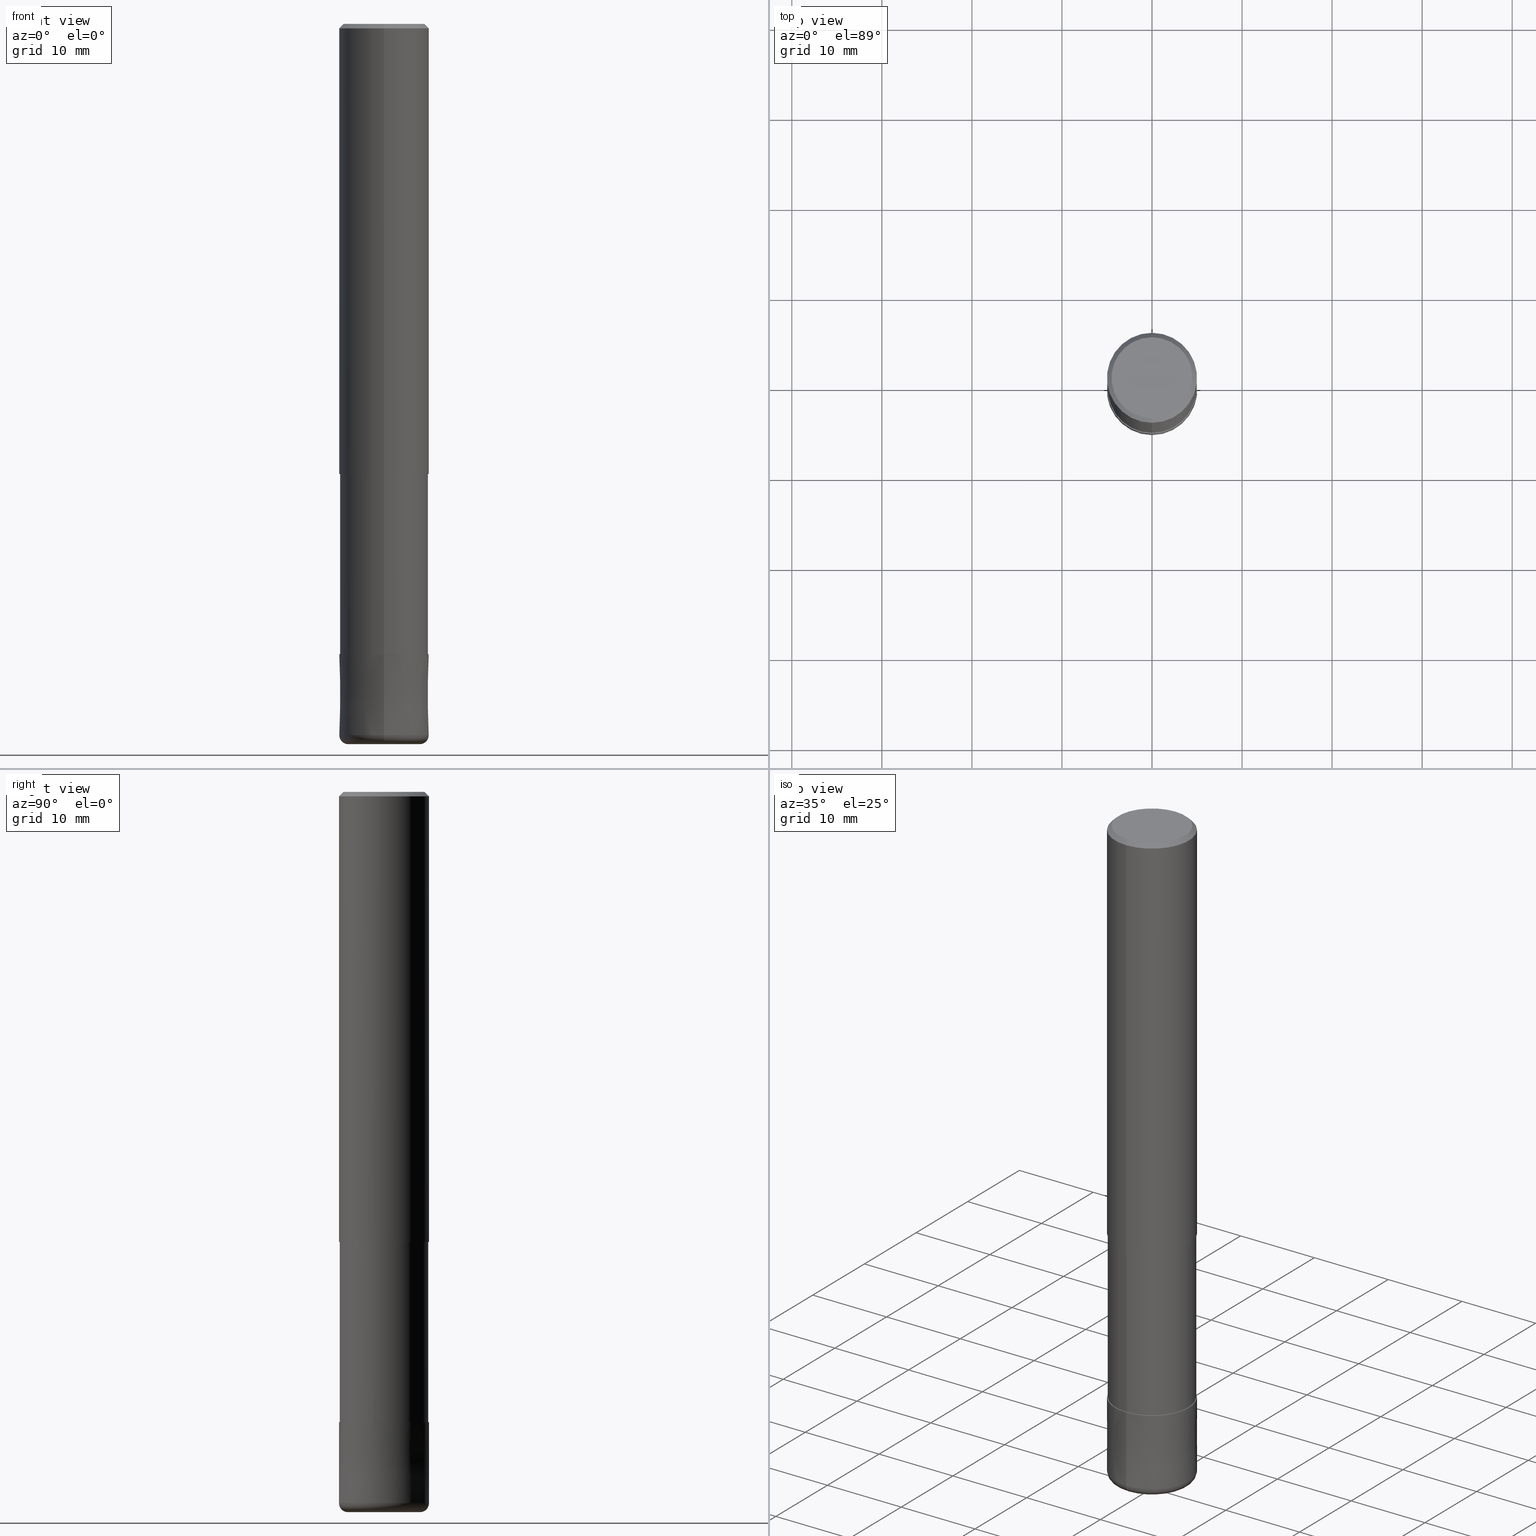
[diagram: canonical four-view strip — front | top / right | iso, engineering-drawing reading convention]
A machine part, canonical four-view strip (front | top / right | iso — engineering-drawing reading convention). The complete STEP part file that produces these views, byte-faithful:
ISO-10303-21;
HEADER;
FILE_DESCRIPTION(('no description'),'unknown implementation level');
FILE_NAME('CRRS4100-10-30-Huellk.stp','  ',('CIMSOURCE GmbH'),('CADClick - KiM GmbH - www.kimweb.de'),'unknown preprocess','ACIS','unknown authorization');
FILE_SCHEMA(('automotive_design'));
ENDSEC;
DATA;
#1=MECHANICAL_DESIGN_GEOMETRIC_PRESENTATION_REPRESENTATION(' ',(#14,#15,#16,#17,#18,#19,#20,#21,#22,#23,#24,#25,#26,#27,#28,#29,#30,#31,#32,#33,#34,#35,#36,#37,#38,#39,#40,#41,#42,#43,#44,#45,#46,#47,#48,#49,#50,#51,#52,#53,#54,#55,#56,#57,#58,#59,#60,#61,#62,#63,#64,#65,#66,#67,#68,#69,#70,#71,#72),#10);
#2=PRODUCT_DEFINITION_CONTEXT('',#73,'design');
#3=APPLICATION_PROTOCOL_DEFINITION('INTERNATIONAL STANDARD','automotive_design',1994,#73);
#4=PRODUCT_CATEGORY_RELATIONSHIP('NONE','NONE',#74,#75);
#5=SHAPE_DEFINITION_REPRESENTATION(#76,#77);
#6=PRODUCT_DEFINITION_CONTEXT('',#78,'design');
#7=APPLICATION_PROTOCOL_DEFINITION('INTERNATIONAL STANDARD','automotive_design',1994,#78);
#8=PRODUCT_CATEGORY_RELATIONSHIP('NONE','NONE',#79,#80);
#9=SHAPE_DEFINITION_REPRESENTATION(#81,#82);
#10= (GEOMETRIC_REPRESENTATION_CONTEXT(3)GLOBAL_UNCERTAINTY_ASSIGNED_CONTEXT((#85))GLOBAL_UNIT_ASSIGNED_CONTEXT((#87,#88,#89))REPRESENTATION_CONTEXT('NONE','WORKSPACE'));
#14=STYLED_ITEM('',(#91),#92);
#15=STYLED_ITEM('',(#93),#94);
#16=STYLED_ITEM('',(#95),#96);
#17=STYLED_ITEM('',(#97),#98);
#18=STYLED_ITEM('',(#99),#100);
#19=STYLED_ITEM('',(#101),#102);
#20=STYLED_ITEM('',(#103),#104);
#21=STYLED_ITEM('',(#105),#106);
#22=STYLED_ITEM('',(#107),#108);
#23=STYLED_ITEM('',(#109),#110);
#24=STYLED_ITEM('',(#111),#112);
#25=STYLED_ITEM('',(#113),#114);
#26=STYLED_ITEM('',(#115),#116);
#27=STYLED_ITEM('',(#117),#118);
#28=STYLED_ITEM('',(#119),#120);
#29=STYLED_ITEM('',(#121),#122);
#30=STYLED_ITEM('',(#123),#124);
#31=STYLED_ITEM('',(#125),#126);
#32=STYLED_ITEM('',(#127),#128);
#33=STYLED_ITEM('',(#129),#130);
#34=STYLED_ITEM('',(#131),#132);
#35=STYLED_ITEM('',(#133),#134);
#36=STYLED_ITEM('',(#135),#136);
#37=STYLED_ITEM('',(#137),#138);
#38=STYLED_ITEM('',(#139),#140);
#39=STYLED_ITEM('',(#141),#142);
#40=STYLED_ITEM('',(#143),#144);
#41=STYLED_ITEM('',(#145),#146);
#42=STYLED_ITEM('',(#147),#148);
#43=STYLED_ITEM('',(#149),#150);
#44=STYLED_ITEM('',(#151),#152);
#45=STYLED_ITEM('',(#153),#154);
#46=STYLED_ITEM('',(#155),#156);
#47=STYLED_ITEM('',(#157),#158);
#48=STYLED_ITEM('',(#159),#160);
#49=STYLED_ITEM('',(#161),#162);
#50=STYLED_ITEM('',(#163),#164);
#51=STYLED_ITEM('',(#165),#166);
#52=STYLED_ITEM('',(#167),#168);
#53=STYLED_ITEM('',(#169),#170);
#54=STYLED_ITEM('',(#171),#172);
#55=STYLED_ITEM('',(#173),#174);
#56=STYLED_ITEM('',(#175),#176);
#57=STYLED_ITEM('',(#177),#178);
#58=STYLED_ITEM('',(#179),#180);
#59=STYLED_ITEM('',(#181),#182);
#60=STYLED_ITEM('',(#183),#184);
#61=STYLED_ITEM('',(#185),#186);
#62=STYLED_ITEM('',(#187),#188);
#63=STYLED_ITEM('',(#189),#190);
#64=STYLED_ITEM('',(#191),#192);
#65=STYLED_ITEM('',(#193),#194);
#66=STYLED_ITEM('',(#195),#196);
#67=STYLED_ITEM('',(#197),#198);
#68=STYLED_ITEM('',(#199),#200);
#69=STYLED_ITEM('',(#201),#202);
#70=STYLED_ITEM('',(#203),#204);
#71=STYLED_ITEM('',(#205),#206);
#72=STYLED_ITEM('',(#207),#208);
#73=APPLICATION_CONTEXT(' ');
#74=PRODUCT_CATEGORY('part','NONE');
#75=PRODUCT_RELATED_PRODUCT_CATEGORY('detail',' ',(#209));
#76=PRODUCT_DEFINITION_SHAPE('NONE','NONE',#210);
#77=ADVANCED_BREP_SHAPE_REPRESENTATION('1',(#100,#211),#10);
#78=APPLICATION_CONTEXT(' ');
#79=PRODUCT_CATEGORY('part','NONE');
#80=PRODUCT_RELATED_PRODUCT_CATEGORY('detail',' ',(#212));
#81=PRODUCT_DEFINITION_SHAPE('NONE','NONE',#213);
#82=ADVANCED_BREP_SHAPE_REPRESENTATION('2',(#92,#214),#10);
#85=UNCERTAINTY_MEASURE_WITH_UNIT(LENGTH_MEASURE(1.0E-006),#87,'','');
#87= (CONVERSION_BASED_UNIT('MILLIMETRE',#217)LENGTH_UNIT()NAMED_UNIT(#220));
#88= (NAMED_UNIT(#222)PLANE_ANGLE_UNIT()SI_UNIT($,.RADIAN.));
#89= (NAMED_UNIT(#222)SOLID_ANGLE_UNIT()SI_UNIT($,.STERADIAN.));
#91=PRESENTATION_STYLE_ASSIGNMENT((#228));
#92=MANIFOLD_SOLID_BREP('2',#229);
#93=PRESENTATION_STYLE_ASSIGNMENT((#230));
#94=EDGE_CURVE('',#202,#180,#231,.T.);
#95=PRESENTATION_STYLE_ASSIGNMENT((#232));
#96=EDGE_CURVE('',#136,#180,#233,.T.);
#97=PRESENTATION_STYLE_ASSIGNMENT((#234));
#98=EDGE_CURVE('',#178,#136,#235,.T.);
#99=PRESENTATION_STYLE_ASSIGNMENT((#236));
#100=MANIFOLD_SOLID_BREP('1',#237);
#101=PRESENTATION_STYLE_ASSIGNMENT((#238));
#102=EDGE_CURVE('',#158,#208,#239,.T.);
#103=PRESENTATION_STYLE_ASSIGNMENT((#240));
#104=VERTEX_POINT('',#241);
#105=PRESENTATION_STYLE_ASSIGNMENT((#242));
#106=ADVANCED_FACE('',(#243),#244,.T.);
#107=PRESENTATION_STYLE_ASSIGNMENT((#245));
#108=EDGE_CURVE('',#122,#118,#246,.T.);
#109=PRESENTATION_STYLE_ASSIGNMENT((#247));
#110=EDGE_CURVE('',#188,#184,#248,.T.);
#111=PRESENTATION_STYLE_ASSIGNMENT((#249));
#112=EDGE_CURVE('',#118,#122,#250,.T.);
#113=PRESENTATION_STYLE_ASSIGNMENT((#251));
#114=ADVANCED_FACE('',(#252),#253,.T.);
#115=PRESENTATION_STYLE_ASSIGNMENT((#254));
#116=ADVANCED_FACE('',(#255),#256,.T.);
#117=PRESENTATION_STYLE_ASSIGNMENT((#257));
#118=VERTEX_POINT('',#258);
#119=PRESENTATION_STYLE_ASSIGNMENT((#259));
#120=EDGE_CURVE('',#184,#174,#260,.T.);
#121=PRESENTATION_STYLE_ASSIGNMENT((#261));
#122=VERTEX_POINT('',#262);
#123=PRESENTATION_STYLE_ASSIGNMENT((#263));
#124=EDGE_CURVE('',#198,#208,#264,.T.);
#125=PRESENTATION_STYLE_ASSIGNMENT((#265));
#126=EDGE_CURVE('',#186,#188,#266,.T.);
#127=PRESENTATION_STYLE_ASSIGNMENT((#267));
#128=EDGE_CURVE('',#136,#178,#268,.T.);
#129=PRESENTATION_STYLE_ASSIGNMENT((#269));
#130=EDGE_CURVE('',#180,#202,#270,.T.);
#131=PRESENTATION_STYLE_ASSIGNMENT((#271));
#132=EDGE_CURVE('',#138,#104,#272,.T.);
#133=PRESENTATION_STYLE_ASSIGNMENT((#273));
#134=EDGE_CURVE('',#174,#186,#274,.T.);
#135=PRESENTATION_STYLE_ASSIGNMENT((#275));
#136=VERTEX_POINT('',#276);
#137=PRESENTATION_STYLE_ASSIGNMENT((#277));
#138=VERTEX_POINT('',#278);
#139=PRESENTATION_STYLE_ASSIGNMENT((#279));
#140=EDGE_CURVE('',#188,#186,#280,.T.);
#141=PRESENTATION_STYLE_ASSIGNMENT((#281));
#142=ADVANCED_FACE('',(#282),#283,.T.);
#143=PRESENTATION_STYLE_ASSIGNMENT((#284));
#144=ADVANCED_FACE('',(#285),#286,.T.);
#145=PRESENTATION_STYLE_ASSIGNMENT((#287));
#146=EDGE_CURVE('',#104,#158,#288,.T.);
#147=PRESENTATION_STYLE_ASSIGNMENT((#289));
#148=ADVANCED_FACE('',(#290),#291,.T.);
#149=PRESENTATION_STYLE_ASSIGNMENT((#292));
#150=ADVANCED_FACE('',(#293),#294,.T.);
#151=PRESENTATION_STYLE_ASSIGNMENT((#295));
#152=ADVANCED_FACE('',(#296),#297,.T.);
#153=PRESENTATION_STYLE_ASSIGNMENT((#298));
#154=EDGE_CURVE('',#104,#138,#299,.T.);
#155=PRESENTATION_STYLE_ASSIGNMENT((#300));
#156=ADVANCED_FACE('',(#301,#302),#303,.T.);
#157=PRESENTATION_STYLE_ASSIGNMENT((#304));
#158=VERTEX_POINT('',#305);
#159=PRESENTATION_STYLE_ASSIGNMENT((#306));
#160=EDGE_CURVE('',#202,#178,#307,.T.);
#161=PRESENTATION_STYLE_ASSIGNMENT((#308));
#162=ADVANCED_FACE('',(#309),#310,.T.);
#163=PRESENTATION_STYLE_ASSIGNMENT((#311));
#164=VERTEX_POINT('',#312);
#165=PRESENTATION_STYLE_ASSIGNMENT((#313));
#166=ADVANCED_FACE('',(#314),#315,.T.);
#167=PRESENTATION_STYLE_ASSIGNMENT((#316));
#168=EDGE_CURVE('',#198,#164,#317,.T.);
#169=PRESENTATION_STYLE_ASSIGNMENT((#318));
#170=ADVANCED_FACE('',(#319),#320,.T.);
#171=PRESENTATION_STYLE_ASSIGNMENT((#321));
#172=EDGE_CURVE('',#208,#198,#322,.T.);
#173=PRESENTATION_STYLE_ASSIGNMENT((#323));
#174=VERTEX_POINT('',#324);
#175=PRESENTATION_STYLE_ASSIGNMENT((#325));
#176=EDGE_CURVE('',#118,#186,#326,.T.);
#177=PRESENTATION_STYLE_ASSIGNMENT((#327));
#178=VERTEX_POINT('',#328);
#179=PRESENTATION_STYLE_ASSIGNMENT((#329));
#180=VERTEX_POINT('',#330);
#181=PRESENTATION_STYLE_ASSIGNMENT((#331));
#182=ADVANCED_FACE('',(#332),#333,.T.);
#183=PRESENTATION_STYLE_ASSIGNMENT((#334));
#184=VERTEX_POINT('',#335);
#185=PRESENTATION_STYLE_ASSIGNMENT((#336));
#186=VERTEX_POINT('',#337);
#187=PRESENTATION_STYLE_ASSIGNMENT((#338));
#188=VERTEX_POINT('',#339);
#189=PRESENTATION_STYLE_ASSIGNMENT((#340));
#190=ADVANCED_FACE('',(#341),#342,.T.);
#191=PRESENTATION_STYLE_ASSIGNMENT((#343));
#192=EDGE_CURVE('',#158,#164,#344,.T.);
#193=PRESENTATION_STYLE_ASSIGNMENT((#345));
#194=EDGE_CURVE('',#188,#122,#346,.T.);
#195=PRESENTATION_STYLE_ASSIGNMENT((#347));
#196=EDGE_CURVE('',#174,#184,#348,.T.);
#197=PRESENTATION_STYLE_ASSIGNMENT((#349));
#198=VERTEX_POINT('',#350);
#199=PRESENTATION_STYLE_ASSIGNMENT((#351));
#200=ADVANCED_FACE('',(#352),#353,.T.);
#201=PRESENTATION_STYLE_ASSIGNMENT((#354));
#202=VERTEX_POINT('',#355);
#203=PRESENTATION_STYLE_ASSIGNMENT((#356));
#204=EDGE_CURVE('',#164,#158,#357,.T.);
#205=PRESENTATION_STYLE_ASSIGNMENT((#358));
#206=EDGE_CURVE('',#164,#138,#359,.T.);
#207=PRESENTATION_STYLE_ASSIGNMENT((#360));
#208=VERTEX_POINT('',#361);
#209=PRODUCT('1','1','PART-1-DESC',(#362));
#210=PRODUCT_DEFINITION('NONE','NONE',#363,#2);
#211=AXIS2_PLACEMENT_3D('',#364,#365,#366);
#212=PRODUCT('2','2','PART-2-DESC',(#367));
#213=PRODUCT_DEFINITION('NONE','NONE',#368,#6);
#214=AXIS2_PLACEMENT_3D('',#369,#370,#371);
#217=LENGTH_MEASURE_WITH_UNIT(LENGTH_MEASURE(1.0),#372);
#220=DIMENSIONAL_EXPONENTS(1.0,0.0,0.0,0.0,0.0,0.0,0.0);
#222=DIMENSIONAL_EXPONENTS(0.0,0.0,0.0,0.0,0.0,0.0,0.0);
#228=SURFACE_STYLE_USAGE(.BOTH.,#373);
#229=CLOSED_SHELL('',(#106,#150,#182,#162,#200,#170));
#230=CURVE_STYLE('',#374,POSITIVE_LENGTH_MEASURE(1.0E-006),#375);
#231=CIRCLE('',#376,4.90995);
#232=CURVE_STYLE('',#377,POSITIVE_LENGTH_MEASURE(1.0E-006),#378);
#233=LINE('',#379,#380);
#234=CURVE_STYLE('',#381,POSITIVE_LENGTH_MEASURE(1.0E-006),#382);
#235=CIRCLE('',#383,4.90995);
#236=SURFACE_STYLE_USAGE(.BOTH.,#384);
#237=CLOSED_SHELL('',(#166,#190,#144,#156,#116,#142,#148,#114,#152));
#238=CURVE_STYLE('',#385,POSITIVE_LENGTH_MEASURE(1.0E-006),#386);
#239=LINE('',#387,#388);
#240=POINT_STYLE(' ',#389,POSITIVE_LENGTH_MEASURE(1.0E-006),#390);
#241=CARTESIAN_POINT('',(0.0,4.5,0.0));
#242=SURFACE_STYLE_USAGE(.BOTH.,#391);
#243=FACE_OUTER_BOUND('',#392,.T.);
#244=TOROIDAL_SURFACE('',#393,4.0,1.0);
#245=CURVE_STYLE('',#394,POSITIVE_LENGTH_MEASURE(1.0E-006),#395);
#246=CIRCLE('',#396,4.0);
#247=CURVE_STYLE('',#397,POSITIVE_LENGTH_MEASURE(1.0E-006),#398);
#248=LINE('',#399,#400);
#249=CURVE_STYLE('',#401,POSITIVE_LENGTH_MEASURE(1.0E-006),#402);
#250=CIRCLE('',#403,4.0);
#251=SURFACE_STYLE_USAGE(.BOTH.,#404);
#252=FACE_OUTER_BOUND('',#405,.T.);
#253=CYLINDRICAL_SURFACE('',#406,4.90995);
#254=SURFACE_STYLE_USAGE(.BOTH.,#407);
#255=FACE_OUTER_BOUND('',#408,.T.);
#256=PLANE('',#409);
#257=POINT_STYLE(' ',#410,POSITIVE_LENGTH_MEASURE(1.0E-006),#411);
#258=CARTESIAN_POINT('',(0.0,4.0,-80.0));
#259=CURVE_STYLE('',#412,POSITIVE_LENGTH_MEASURE(1.0E-006),#413);
#260=CIRCLE('',#414,4.9999);
#261=POINT_STYLE(' ',#415,POSITIVE_LENGTH_MEASURE(1.0E-006),#416);
#262=CARTESIAN_POINT('',(4.89842541528951E-016,-4.0,-80.0));
#263=CURVE_STYLE('',#417,POSITIVE_LENGTH_MEASURE(1.0E-006),#418);
#264=CIRCLE('',#419,5.0);
#265=CURVE_STYLE('',#420,POSITIVE_LENGTH_MEASURE(1.0E-006),#421);
#266=CIRCLE('',#422,5.0);
#267=CURVE_STYLE('',#423,POSITIVE_LENGTH_MEASURE(1.0E-006),#424);
#268=CIRCLE('',#425,4.90995);
#269=CURVE_STYLE('',#426,POSITIVE_LENGTH_MEASURE(1.0E-006),#427);
#270=CIRCLE('',#428,4.90995);
#271=CURVE_STYLE('',#429,POSITIVE_LENGTH_MEASURE(1.0E-006),#430);
#272=CIRCLE('',#431,4.5);
#273=CURVE_STYLE('',#432,POSITIVE_LENGTH_MEASURE(1.0E-006),#433);
#274=LINE('',#434,#435);
#275=POINT_STYLE(' ',#436,POSITIVE_LENGTH_MEASURE(1.0E-006),#437);
#276=CARTESIAN_POINT('',(0.0,4.90995,-50.0));
#277=POINT_STYLE(' ',#438,POSITIVE_LENGTH_MEASURE(1.0E-006),#439);
#278=CARTESIAN_POINT('',(5.5107285922007E-016,-4.5,0.0));
#279=CURVE_STYLE('',#440,POSITIVE_LENGTH_MEASURE(1.0E-006),#441);
#280=CIRCLE('',#442,5.0);
#281=SURFACE_STYLE_USAGE(.BOTH.,#443);
#282=FACE_OUTER_BOUND('',#444,.T.);
#283=CONICAL_SURFACE('',#445,4.75,0.785398163397448);
#284=SURFACE_STYLE_USAGE(.BOTH.,#446);
#285=FACE_OUTER_BOUND('',#447,.T.);
#286=CONICAL_SURFACE('',#448,4.75,0.785398163397448);
#287=CURVE_STYLE('',#449,POSITIVE_LENGTH_MEASURE(1.0E-006),#450);
#288=LINE('',#451,#452);
#289=SURFACE_STYLE_USAGE(.BOTH.,#453);
#290=FACE_OUTER_BOUND('',#454,.T.);
#291=CYLINDRICAL_SURFACE('',#455,5.0);
#292=SURFACE_STYLE_USAGE(.BOTH.,#456);
#293=FACE_OUTER_BOUND('',#457,.T.);
#294=CONICAL_SURFACE('',#458,4.99995,1.1111111110628E-005);
#295=SURFACE_STYLE_USAGE(.BOTH.,#459);
#296=FACE_OUTER_BOUND('',#460,.T.);
#297=PLANE('',#461);
#298=CURVE_STYLE('',#462,POSITIVE_LENGTH_MEASURE(1.0E-006),#463);
#299=CIRCLE('',#464,4.5);
#300=SURFACE_STYLE_USAGE(.BOTH.,#465);
#301=FACE_OUTER_BOUND('',#466,.T.);
#302=FACE_BOUND('',#467,.T.);
#303=PLANE('',#468);
#304=POINT_STYLE(' ',#469,POSITIVE_LENGTH_MEASURE(1.0E-006),#470);
#305=CARTESIAN_POINT('',(0.0,5.0,-0.5));
#306=CURVE_STYLE('',#471,POSITIVE_LENGTH_MEASURE(1.0E-006),#472);
#307=LINE('',#473,#474);
#308=SURFACE_STYLE_USAGE(.BOTH.,#475);
#309=FACE_OUTER_BOUND('',#476,.T.);
#310=CONICAL_SURFACE('',#477,4.99995,1.1111111110628E-005);
#311=POINT_STYLE(' ',#478,POSITIVE_LENGTH_MEASURE(1.0E-006),#479);
#312=CARTESIAN_POINT('',(6.12303176911189E-016,-5.0,-0.5));
#313=SURFACE_STYLE_USAGE(.BOTH.,#480);
#314=FACE_OUTER_BOUND('',#481,.T.);
#315=CYLINDRICAL_SURFACE('',#482,4.90995);
#316=CURVE_STYLE('',#483,POSITIVE_LENGTH_MEASURE(1.0E-006),#484);
#317=LINE('',#485,#486);
#318=SURFACE_STYLE_USAGE(.BOTH.,#487);
#319=FACE_OUTER_BOUND('',#488,.T.);
#320=PLANE('',#489);
#321=CURVE_STYLE('',#490,POSITIVE_LENGTH_MEASURE(1.0E-006),#491);
#322=CIRCLE('',#492,5.0);
#323=POINT_STYLE(' ',#493,POSITIVE_LENGTH_MEASURE(1.0E-006),#494);
#324=CARTESIAN_POINT('',(0.0,4.9999,-70.0));
#325=CURVE_STYLE('',#495,POSITIVE_LENGTH_MEASURE(1.0E-006),#496);
#326=CIRCLE('',#497,1.0);
#327=POINT_STYLE(' ',#498,POSITIVE_LENGTH_MEASURE(1.0E-006),#499);
#328=CARTESIAN_POINT('',(6.01275596695018E-016,-4.90995,-50.0));
#329=POINT_STYLE(' ',#500,POSITIVE_LENGTH_MEASURE(1.0E-006),#501);
#330=CARTESIAN_POINT('',(0.0,4.90995,-70.0));
#331=SURFACE_STYLE_USAGE(.BOTH.,#502);
#332=FACE_OUTER_BOUND('',#503,.T.);
#333=PLANE('',#504);
#334=POINT_STYLE(' ',#505,POSITIVE_LENGTH_MEASURE(1.0E-006),#506);
#335=CARTESIAN_POINT('',(6.1229093084765E-016,-4.9999,-70.0));
#336=POINT_STYLE(' ',#507,POSITIVE_LENGTH_MEASURE(1.0E-006),#508);
#337=CARTESIAN_POINT('',(0.0,5.0,-79.0));
#338=POINT_STYLE(' ',#509,POSITIVE_LENGTH_MEASURE(1.0E-006),#510);
#339=CARTESIAN_POINT('',(6.12303176911189E-016,-5.0,-79.0));
#340=SURFACE_STYLE_USAGE(.BOTH.,#511);
#341=FACE_OUTER_BOUND('',#512,.T.);
#342=CYLINDRICAL_SURFACE('',#513,5.0);
#343=CURVE_STYLE('',#514,POSITIVE_LENGTH_MEASURE(1.0E-006),#515);
#344=CIRCLE('',#516,5.0);
#345=CURVE_STYLE('',#517,POSITIVE_LENGTH_MEASURE(1.0E-006),#518);
#346=CIRCLE('',#519,1.0);
#347=CURVE_STYLE('',#520,POSITIVE_LENGTH_MEASURE(1.0E-006),#521);
#348=CIRCLE('',#522,4.9999);
#349=POINT_STYLE(' ',#523,POSITIVE_LENGTH_MEASURE(1.0E-006),#524);
#350=CARTESIAN_POINT('',(6.12303176911189E-016,-5.0,-50.0));
#351=SURFACE_STYLE_USAGE(.BOTH.,#525);
#352=FACE_OUTER_BOUND('',#526,.T.);
#353=TOROIDAL_SURFACE('',#527,4.0,1.0);
#354=POINT_STYLE(' ',#528,POSITIVE_LENGTH_MEASURE(1.0E-006),#529);
#355=CARTESIAN_POINT('',(6.01275596695018E-016,-4.90995,-70.0));
#356=CURVE_STYLE('',#530,POSITIVE_LENGTH_MEASURE(1.0E-006),#531);
#357=CIRCLE('',#532,5.0);
#358=CURVE_STYLE('',#533,POSITIVE_LENGTH_MEASURE(1.0E-006),#534);
#359=LINE('',#535,#536);
#360=POINT_STYLE(' ',#537,POSITIVE_LENGTH_MEASURE(1.0E-006),#538);
#361=CARTESIAN_POINT('',(0.0,5.0,-50.0));
#362=PRODUCT_CONTEXT('',#73,'mechanical');
#363=PRODUCT_DEFINITION_FORMATION_WITH_SPECIFIED_SOURCE(' ','NONE',#209,.NOT_KNOWN.);
#364=CARTESIAN_POINT('',(0.0,0.0,0.0));
#365=DIRECTION('',(0.0,0.0,1.0));
#366=DIRECTION('',(1.0,0.0,0.0));
#367=PRODUCT_CONTEXT('',#78,'mechanical');
#368=PRODUCT_DEFINITION_FORMATION_WITH_SPECIFIED_SOURCE(' ','NONE',#212,.NOT_KNOWN.);
#369=CARTESIAN_POINT('',(0.0,0.0,0.0));
#370=DIRECTION('',(0.0,0.0,1.0));
#371=DIRECTION('',(1.0,0.0,0.0));
#372= (NAMED_UNIT(#220)LENGTH_UNIT()SI_UNIT(.MILLI.,.METRE.));
#373=SURFACE_SIDE_STYLE('',(#540));
#374=DRAUGHTING_PRE_DEFINED_CURVE_FONT('continuous');
#375=COLOUR_RGB('',0.498039215803146,0.498039215803146,0.498039215803146);
#376=AXIS2_PLACEMENT_3D('',#541,#542,#543);
#377=DRAUGHTING_PRE_DEFINED_CURVE_FONT('continuous');
#378=COLOUR_RGB('',0.498039215803146,0.498039215803146,0.498039215803146);
#379=CARTESIAN_POINT('',(-6.01275596695018E-016,4.90995,-60.0));
#380=VECTOR('',#544,1.0);
#381=DRAUGHTING_PRE_DEFINED_CURVE_FONT('continuous');
#382=COLOUR_RGB('',0.498039215803146,0.498039215803146,0.498039215803146);
#383=AXIS2_PLACEMENT_3D('',#545,#546,#547);
#384=SURFACE_SIDE_STYLE('',(#548));
#385=DRAUGHTING_PRE_DEFINED_CURVE_FONT('continuous');
#386=COLOUR_RGB('',0.498039215803146,0.498039215803146,0.498039215803146);
#387=CARTESIAN_POINT('',(-6.12303176911189E-016,5.0,-25.25));
#388=VECTOR('',#549,1.0);
#389=PRE_DEFINED_MARKER('');
#390=COLOUR_RGB('',0.498039215803146,0.498039215803146,0.498039215803146);
#391=SURFACE_SIDE_STYLE('',(#550));
#392=EDGE_LOOP('',(#551,#552,#553,#554));
#393=AXIS2_PLACEMENT_3D('',#555,#556,#557);
#394=DRAUGHTING_PRE_DEFINED_CURVE_FONT('continuous');
#395=COLOUR_RGB('',0.800000011920929,0.800000011920929,0.800000011920929);
#396=AXIS2_PLACEMENT_3D('',#558,#559,#560);
#397=DRAUGHTING_PRE_DEFINED_CURVE_FONT('continuous');
#398=COLOUR_RGB('',0.800000011920929,0.800000011920929,0.800000011920929);
#399=CARTESIAN_POINT('',(6.12297053879419E-016,-4.99995,-74.5));
#400=VECTOR('',#561,1.0);
#401=DRAUGHTING_PRE_DEFINED_CURVE_FONT('continuous');
#402=COLOUR_RGB('',0.800000011920929,0.800000011920929,0.800000011920929);
#403=AXIS2_PLACEMENT_3D('',#562,#563,#564);
#404=SURFACE_SIDE_STYLE('',(#565));
#405=EDGE_LOOP('',(#566,#567,#568,#569));
#406=AXIS2_PLACEMENT_3D('',#570,#571,#572);
#407=SURFACE_SIDE_STYLE('',(#573));
#408=EDGE_LOOP('',(#574,#575));
#409=AXIS2_PLACEMENT_3D('',#576,#577,#578);
#410=PRE_DEFINED_MARKER('');
#411=COLOUR_RGB('',0.800000011920929,0.800000011920929,0.800000011920929);
#412=DRAUGHTING_PRE_DEFINED_CURVE_FONT('continuous');
#413=COLOUR_RGB('',0.800000011920929,0.800000011920929,0.800000011920929);
#414=AXIS2_PLACEMENT_3D('',#579,#580,#581);
#415=PRE_DEFINED_MARKER('');
#416=COLOUR_RGB('',0.800000011920929,0.800000011920929,0.800000011920929);
#417=DRAUGHTING_PRE_DEFINED_CURVE_FONT('continuous');
#418=COLOUR_RGB('',0.498039215803146,0.498039215803146,0.498039215803146);
#419=AXIS2_PLACEMENT_3D('',#582,#583,#584);
#420=DRAUGHTING_PRE_DEFINED_CURVE_FONT('continuous');
#421=COLOUR_RGB('',0.800000011920929,0.800000011920929,0.800000011920929);
#422=AXIS2_PLACEMENT_3D('',#585,#586,#587);
#423=DRAUGHTING_PRE_DEFINED_CURVE_FONT('continuous');
#424=COLOUR_RGB('',0.498039215803146,0.498039215803146,0.498039215803146);
#425=AXIS2_PLACEMENT_3D('',#588,#589,#590);
#426=DRAUGHTING_PRE_DEFINED_CURVE_FONT('continuous');
#427=COLOUR_RGB('',0.498039215803146,0.498039215803146,0.498039215803146);
#428=AXIS2_PLACEMENT_3D('',#591,#592,#593);
#429=DRAUGHTING_PRE_DEFINED_CURVE_FONT('continuous');
#430=COLOUR_RGB('',0.498039215803146,0.498039215803146,0.498039215803146);
#431=AXIS2_PLACEMENT_3D('',#594,#595,#596);
#432=DRAUGHTING_PRE_DEFINED_CURVE_FONT('continuous');
#433=COLOUR_RGB('',0.800000011920929,0.800000011920929,0.800000011920929);
#434=CARTESIAN_POINT('',(-6.12297053879419E-016,4.99995,-74.5));
#435=VECTOR('',#597,1.0);
#436=PRE_DEFINED_MARKER('');
#437=COLOUR_RGB('',0.498039215803146,0.498039215803146,0.498039215803146);
#438=PRE_DEFINED_MARKER('');
#439=COLOUR_RGB('',0.498039215803146,0.498039215803146,0.498039215803146);
#440=DRAUGHTING_PRE_DEFINED_CURVE_FONT('continuous');
#441=COLOUR_RGB('',0.800000011920929,0.800000011920929,0.800000011920929);
#442=AXIS2_PLACEMENT_3D('',#598,#599,#600);
#443=SURFACE_SIDE_STYLE('',(#601));
#444=EDGE_LOOP('',(#602,#603,#604,#605));
#445=AXIS2_PLACEMENT_3D('',#606,#607,#608);
#446=SURFACE_SIDE_STYLE('',(#609));
#447=EDGE_LOOP('',(#610,#611,#612,#613));
#448=AXIS2_PLACEMENT_3D('',#614,#615,#616);
#449=DRAUGHTING_PRE_DEFINED_CURVE_FONT('continuous');
#450=COLOUR_RGB('',0.498039215803146,0.498039215803146,0.498039215803146);
#451=CARTESIAN_POINT('',(-5.81688018065629E-016,4.75,-0.25));
#452=VECTOR('',#617,1.0);
#453=SURFACE_SIDE_STYLE('',(#618));
#454=EDGE_LOOP('',(#619,#620,#621,#622));
#455=AXIS2_PLACEMENT_3D('',#623,#624,#625);
#456=SURFACE_SIDE_STYLE('',(#626));
#457=EDGE_LOOP('',(#627,#628,#629,#630));
#458=AXIS2_PLACEMENT_3D('',#631,#632,#633);
#459=SURFACE_SIDE_STYLE('',(#634));
#460=EDGE_LOOP('',(#635,#636));
#461=AXIS2_PLACEMENT_3D('',#637,#638,#639);
#462=DRAUGHTING_PRE_DEFINED_CURVE_FONT('continuous');
#463=COLOUR_RGB('',0.498039215803146,0.498039215803146,0.498039215803146);
#464=AXIS2_PLACEMENT_3D('',#640,#641,#642);
#465=SURFACE_SIDE_STYLE('',(#643));
#466=EDGE_LOOP('',(#644,#645));
#467=EDGE_LOOP('',(#646,#647));
#468=AXIS2_PLACEMENT_3D('',#648,#649,#650);
#469=PRE_DEFINED_MARKER('');
#470=COLOUR_RGB('',0.498039215803146,0.498039215803146,0.498039215803146);
#471=DRAUGHTING_PRE_DEFINED_CURVE_FONT('continuous');
#472=COLOUR_RGB('',0.498039215803146,0.498039215803146,0.498039215803146);
#473=CARTESIAN_POINT('',(6.01275596695018E-016,-4.90995,-60.0));
#474=VECTOR('',#651,1.0);
#475=SURFACE_SIDE_STYLE('',(#652));
#476=EDGE_LOOP('',(#653,#654,#655,#656));
#477=AXIS2_PLACEMENT_3D('',#657,#658,#659);
#478=PRE_DEFINED_MARKER('');
#479=COLOUR_RGB('',0.498039215803146,0.498039215803146,0.498039215803146);
#480=SURFACE_SIDE_STYLE('',(#660));
#481=EDGE_LOOP('',(#661,#662,#663,#664));
#482=AXIS2_PLACEMENT_3D('',#665,#666,#667);
#483=DRAUGHTING_PRE_DEFINED_CURVE_FONT('continuous');
#484=COLOUR_RGB('',0.498039215803146,0.498039215803146,0.498039215803146);
#485=CARTESIAN_POINT('',(6.12303176911189E-016,-5.0,-25.25));
#486=VECTOR('',#668,1.0);
#487=SURFACE_SIDE_STYLE('',(#669));
#488=EDGE_LOOP('',(#670,#671));
#489=AXIS2_PLACEMENT_3D('',#672,#673,#674);
#490=DRAUGHTING_PRE_DEFINED_CURVE_FONT('continuous');
#491=COLOUR_RGB('',0.498039215803146,0.498039215803146,0.498039215803146);
#492=AXIS2_PLACEMENT_3D('',#675,#676,#677);
#493=PRE_DEFINED_MARKER('');
#494=COLOUR_RGB('',0.800000011920929,0.800000011920929,0.800000011920929);
#495=DRAUGHTING_PRE_DEFINED_CURVE_FONT('continuous');
#496=COLOUR_RGB('',0.800000011920929,0.800000011920929,0.800000011920929);
#497=AXIS2_PLACEMENT_3D('',#678,#679,#680);
#498=PRE_DEFINED_MARKER('');
#499=COLOUR_RGB('',0.498039215803146,0.498039215803146,0.498039215803146);
#500=PRE_DEFINED_MARKER('');
#501=COLOUR_RGB('',0.498039215803146,0.498039215803146,0.498039215803146);
#502=SURFACE_SIDE_STYLE('',(#681));
#503=EDGE_LOOP('',(#682,#683));
#504=AXIS2_PLACEMENT_3D('',#684,#685,#686);
#505=PRE_DEFINED_MARKER('');
#506=COLOUR_RGB('',0.800000011920929,0.800000011920929,0.800000011920929);
#507=PRE_DEFINED_MARKER('');
#508=COLOUR_RGB('',0.800000011920929,0.800000011920929,0.800000011920929);
#509=PRE_DEFINED_MARKER('');
#510=COLOUR_RGB('',0.800000011920929,0.800000011920929,0.800000011920929);
#511=SURFACE_SIDE_STYLE('',(#687));
#512=EDGE_LOOP('',(#688,#689,#690,#691));
#513=AXIS2_PLACEMENT_3D('',#692,#693,#694);
#514=DRAUGHTING_PRE_DEFINED_CURVE_FONT('continuous');
#515=COLOUR_RGB('',0.498039215803146,0.498039215803146,0.498039215803146);
#516=AXIS2_PLACEMENT_3D('',#695,#696,#697);
#517=DRAUGHTING_PRE_DEFINED_CURVE_FONT('continuous');
#518=COLOUR_RGB('',0.800000011920929,0.800000011920929,0.800000011920929);
#519=AXIS2_PLACEMENT_3D('',#698,#699,#700);
#520=DRAUGHTING_PRE_DEFINED_CURVE_FONT('continuous');
#521=COLOUR_RGB('',0.800000011920929,0.800000011920929,0.800000011920929);
#522=AXIS2_PLACEMENT_3D('',#701,#702,#703);
#523=PRE_DEFINED_MARKER('');
#524=COLOUR_RGB('',0.498039215803146,0.498039215803146,0.498039215803146);
#525=SURFACE_SIDE_STYLE('',(#704));
#526=EDGE_LOOP('',(#705,#706,#707,#708));
#527=AXIS2_PLACEMENT_3D('',#709,#710,#711);
#528=PRE_DEFINED_MARKER('');
#529=COLOUR_RGB('',0.498039215803146,0.498039215803146,0.498039215803146);
#530=DRAUGHTING_PRE_DEFINED_CURVE_FONT('continuous');
#531=COLOUR_RGB('',0.498039215803146,0.498039215803146,0.498039215803146);
#532=AXIS2_PLACEMENT_3D('',#712,#713,#714);
#533=DRAUGHTING_PRE_DEFINED_CURVE_FONT('continuous');
#534=COLOUR_RGB('',0.498039215803146,0.498039215803146,0.498039215803146);
#535=CARTESIAN_POINT('',(5.81688018065629E-016,-4.75,-0.25));
#536=VECTOR('',#715,1.0);
#537=PRE_DEFINED_MARKER('');
#538=COLOUR_RGB('',0.498039215803146,0.498039215803146,0.498039215803146);
#540=SURFACE_STYLE_FILL_AREA(#716);
#541=CARTESIAN_POINT('',(0.0,0.0,-70.0));
#542=DIRECTION('',(0.0,0.0,-1.0));
#543=DIRECTION('',(0.0,1.0,0.0));
#544=DIRECTION('',(0.0,0.0,-1.0));
#545=CARTESIAN_POINT('',(0.0,0.0,-50.0));
#546=DIRECTION('',(0.0,0.0,-1.0));
#547=DIRECTION('',(0.0,1.0,0.0));
#548=SURFACE_STYLE_FILL_AREA(#717);
#549=DIRECTION('',(0.0,0.0,-1.0));
#550=SURFACE_STYLE_FILL_AREA(#718);
#551=ORIENTED_EDGE('',*,*,#194,.F.);
#552=ORIENTED_EDGE('',*,*,#140,.T.);
#553=ORIENTED_EDGE('',*,*,#176,.F.);
#554=ORIENTED_EDGE('',*,*,#108,.F.);
#555=CARTESIAN_POINT('',(0.0,0.0,-79.0));
#556=DIRECTION('',(0.0,0.0,-1.0));
#557=DIRECTION('',(0.0,-1.0,0.0));
#558=CARTESIAN_POINT('',(0.0,0.0,-80.0));
#559=DIRECTION('',(0.0,0.0,-1.0));
#560=DIRECTION('',(0.0,1.0,0.0));
#561=DIRECTION('',(-1.36067372638214E-021,1.11111111103993E-005,0.999999999938272));
#562=CARTESIAN_POINT('',(0.0,0.0,-80.0));
#563=DIRECTION('',(0.0,0.0,-1.0));
#564=DIRECTION('',(0.0,1.0,0.0));
#565=SURFACE_STYLE_FILL_AREA(#719);
#566=ORIENTED_EDGE('',*,*,#96,.T.);
#567=ORIENTED_EDGE('',*,*,#94,.F.);
#568=ORIENTED_EDGE('',*,*,#160,.T.);
#569=ORIENTED_EDGE('',*,*,#98,.T.);
#570=CARTESIAN_POINT('',(0.0,0.0,-60.0));
#571=DIRECTION('',(-0.0,-0.0,1.0));
#572=DIRECTION('',(0.0,1.0,0.0));
#573=SURFACE_STYLE_FILL_AREA(#720);
#574=ORIENTED_EDGE('',*,*,#154,.F.);
#575=ORIENTED_EDGE('',*,*,#132,.F.);
#576=CARTESIAN_POINT('',(0.0,2.25,0.0));
#577=DIRECTION('',(-0.0,0.0,1.0));
#578=DIRECTION('',(0.0,-1.0,0.0));
#579=CARTESIAN_POINT('',(0.0,0.0,-70.0));
#580=DIRECTION('',(0.0,0.0,-1.0));
#581=DIRECTION('',(0.0,1.0,0.0));
#582=CARTESIAN_POINT('',(0.0,0.0,-50.0));
#583=DIRECTION('',(0.0,0.0,-1.0));
#584=DIRECTION('',(0.0,1.0,0.0));
#585=CARTESIAN_POINT('',(0.0,0.0,-79.0));
#586=DIRECTION('',(0.0,0.0,-1.0));
#587=DIRECTION('',(0.0,1.0,0.0));
#588=CARTESIAN_POINT('',(0.0,0.0,-50.0));
#589=DIRECTION('',(0.0,0.0,-1.0));
#590=DIRECTION('',(0.0,1.0,0.0));
#591=CARTESIAN_POINT('',(0.0,0.0,-70.0));
#592=DIRECTION('',(0.0,0.0,-1.0));
#593=DIRECTION('',(0.0,1.0,0.0));
#594=CARTESIAN_POINT('',(0.0,0.0,0.0));
#595=DIRECTION('',(0.0,0.0,-1.0));
#596=DIRECTION('',(0.0,1.0,0.0));
#597=DIRECTION('',(-1.36067372638214E-021,1.11111111103993E-005,-0.999999999938272));
#598=CARTESIAN_POINT('',(0.0,0.0,-79.0));
#599=DIRECTION('',(0.0,0.0,-1.0));
#600=DIRECTION('',(0.0,1.0,0.0));
#601=SURFACE_STYLE_FILL_AREA(#721);
#602=ORIENTED_EDGE('',*,*,#146,.T.);
#603=ORIENTED_EDGE('',*,*,#204,.F.);
#604=ORIENTED_EDGE('',*,*,#206,.T.);
#605=ORIENTED_EDGE('',*,*,#132,.T.);
#606=CARTESIAN_POINT('',(0.0,0.0,-0.25));
#607=DIRECTION('',(0.0,-0.0,-1.0));
#608=DIRECTION('',(0.0,1.0,0.0));
#609=SURFACE_STYLE_FILL_AREA(#722);
#610=ORIENTED_EDGE('',*,*,#146,.F.);
#611=ORIENTED_EDGE('',*,*,#154,.T.);
#612=ORIENTED_EDGE('',*,*,#206,.F.);
#613=ORIENTED_EDGE('',*,*,#192,.F.);
#614=CARTESIAN_POINT('',(0.0,0.0,-0.25));
#615=DIRECTION('',(0.0,-0.0,-1.0));
#616=DIRECTION('',(0.0,1.0,0.0));
#617=DIRECTION('',(-8.65927457071936E-017,0.707106781186548,-0.707106781186548));
#618=SURFACE_STYLE_FILL_AREA(#723);
#619=ORIENTED_EDGE('',*,*,#102,.T.);
#620=ORIENTED_EDGE('',*,*,#124,.F.);
#621=ORIENTED_EDGE('',*,*,#168,.T.);
#622=ORIENTED_EDGE('',*,*,#204,.T.);
#623=CARTESIAN_POINT('',(0.0,0.0,-25.25));
#624=DIRECTION('',(-0.0,-0.0,1.0));
#625=DIRECTION('',(0.0,1.0,0.0));
#626=SURFACE_STYLE_FILL_AREA(#724);
#627=ORIENTED_EDGE('',*,*,#134,.F.);
#628=ORIENTED_EDGE('',*,*,#196,.T.);
#629=ORIENTED_EDGE('',*,*,#110,.F.);
#630=ORIENTED_EDGE('',*,*,#126,.F.);
#631=CARTESIAN_POINT('',(0.0,0.0,-74.5));
#632=DIRECTION('',(0.0,-0.0,-1.0));
#633=DIRECTION('',(0.0,1.0,0.0));
#634=SURFACE_STYLE_FILL_AREA(#725);
#635=ORIENTED_EDGE('',*,*,#130,.T.);
#636=ORIENTED_EDGE('',*,*,#94,.T.);
#637=CARTESIAN_POINT('',(0.0,2.454975,-70.0));
#638=DIRECTION('',(0.0,0.0,-1.0));
#639=DIRECTION('',(0.0,1.0,0.0));
#640=CARTESIAN_POINT('',(0.0,0.0,0.0));
#641=DIRECTION('',(0.0,0.0,-1.0));
#642=DIRECTION('',(0.0,1.0,0.0));
#643=SURFACE_STYLE_FILL_AREA(#726);
#644=ORIENTED_EDGE('',*,*,#172,.T.);
#645=ORIENTED_EDGE('',*,*,#124,.T.);
#646=ORIENTED_EDGE('',*,*,#128,.F.);
#647=ORIENTED_EDGE('',*,*,#98,.F.);
#648=CARTESIAN_POINT('',(0.0,2.5,-50.0));
#649=DIRECTION('',(0.0,0.0,-1.0));
#650=DIRECTION('',(0.0,1.0,0.0));
#651=DIRECTION('',(-0.0,-0.0,1.0));
#652=SURFACE_STYLE_FILL_AREA(#727);
#653=ORIENTED_EDGE('',*,*,#134,.T.);
#654=ORIENTED_EDGE('',*,*,#140,.F.);
#655=ORIENTED_EDGE('',*,*,#110,.T.);
#656=ORIENTED_EDGE('',*,*,#120,.T.);
#657=CARTESIAN_POINT('',(0.0,0.0,-74.5));
#658=DIRECTION('',(0.0,-0.0,-1.0));
#659=DIRECTION('',(0.0,1.0,0.0));
#660=SURFACE_STYLE_FILL_AREA(#728);
#661=ORIENTED_EDGE('',*,*,#96,.F.);
#662=ORIENTED_EDGE('',*,*,#128,.T.);
#663=ORIENTED_EDGE('',*,*,#160,.F.);
#664=ORIENTED_EDGE('',*,*,#130,.F.);
#665=CARTESIAN_POINT('',(0.0,0.0,-60.0));
#666=DIRECTION('',(-0.0,-0.0,1.0));
#667=DIRECTION('',(0.0,1.0,0.0));
#668=DIRECTION('',(-0.0,-0.0,1.0));
#669=SURFACE_STYLE_FILL_AREA(#729);
#670=ORIENTED_EDGE('',*,*,#112,.T.);
#671=ORIENTED_EDGE('',*,*,#108,.T.);
#672=CARTESIAN_POINT('',(0.0,2.0,-80.0));
#673=DIRECTION('',(0.0,0.0,-1.0));
#674=DIRECTION('',(0.0,1.0,0.0));
#675=CARTESIAN_POINT('',(0.0,0.0,-50.0));
#676=DIRECTION('',(0.0,0.0,-1.0));
#677=DIRECTION('',(0.0,1.0,0.0));
#678=CARTESIAN_POINT('',(-4.89842541528951E-016,4.0,-79.0));
#679=DIRECTION('',(1.0,1.22460635382238E-016,0.0));
#680=DIRECTION('',(-1.22460635382238E-016,1.0,0.0));
#681=SURFACE_STYLE_FILL_AREA(#730);
#682=ORIENTED_EDGE('',*,*,#196,.F.);
#683=ORIENTED_EDGE('',*,*,#120,.F.);
#684=CARTESIAN_POINT('',(0.0,2.49995,-70.0));
#685=DIRECTION('',(-0.0,0.0,1.0));
#686=DIRECTION('',(0.0,-1.0,0.0));
#687=SURFACE_STYLE_FILL_AREA(#731);
#688=ORIENTED_EDGE('',*,*,#102,.F.);
#689=ORIENTED_EDGE('',*,*,#192,.T.);
#690=ORIENTED_EDGE('',*,*,#168,.F.);
#691=ORIENTED_EDGE('',*,*,#172,.F.);
#692=CARTESIAN_POINT('',(0.0,0.0,-25.25));
#693=DIRECTION('',(-0.0,-0.0,1.0));
#694=DIRECTION('',(0.0,1.0,0.0));
#695=CARTESIAN_POINT('',(0.0,0.0,-0.5));
#696=DIRECTION('',(0.0,0.0,-1.0));
#697=DIRECTION('',(0.0,1.0,0.0));
#698=CARTESIAN_POINT('',(4.89842541528951E-016,-4.0,-79.0));
#699=DIRECTION('',(1.0,1.22460635382238E-016,0.0));
#700=DIRECTION('',(1.22460635382238E-016,-1.0,-0.0));
#701=CARTESIAN_POINT('',(0.0,0.0,-70.0));
#702=DIRECTION('',(0.0,0.0,-1.0));
#703=DIRECTION('',(0.0,1.0,0.0));
#704=SURFACE_STYLE_FILL_AREA(#732);
#705=ORIENTED_EDGE('',*,*,#194,.T.);
#706=ORIENTED_EDGE('',*,*,#112,.F.);
#707=ORIENTED_EDGE('',*,*,#176,.T.);
#708=ORIENTED_EDGE('',*,*,#126,.T.);
#709=CARTESIAN_POINT('',(0.0,0.0,-79.0));
#710=DIRECTION('',(0.0,0.0,-1.0));
#711=DIRECTION('',(0.0,-1.0,0.0));
#712=CARTESIAN_POINT('',(0.0,0.0,-0.5));
#713=DIRECTION('',(0.0,0.0,-1.0));
#714=DIRECTION('',(0.0,1.0,0.0));
#715=DIRECTION('',(-8.65927457071936E-017,0.707106781186548,0.707106781186548));
#716=FILL_AREA_STYLE('',(#733));
#717=FILL_AREA_STYLE('',(#734));
#718=FILL_AREA_STYLE('',(#735));
#719=FILL_AREA_STYLE('',(#736));
#720=FILL_AREA_STYLE('',(#737));
#721=FILL_AREA_STYLE('',(#738));
#722=FILL_AREA_STYLE('',(#739));
#723=FILL_AREA_STYLE('',(#740));
#724=FILL_AREA_STYLE('',(#741));
#725=FILL_AREA_STYLE('',(#742));
#726=FILL_AREA_STYLE('',(#743));
#727=FILL_AREA_STYLE('',(#744));
#728=FILL_AREA_STYLE('',(#745));
#729=FILL_AREA_STYLE('',(#746));
#730=FILL_AREA_STYLE('',(#747));
#731=FILL_AREA_STYLE('',(#748));
#732=FILL_AREA_STYLE('',(#749));
#733=FILL_AREA_STYLE_COLOUR('',#750);
#734=FILL_AREA_STYLE_COLOUR('',#751);
#735=FILL_AREA_STYLE_COLOUR('',#752);
#736=FILL_AREA_STYLE_COLOUR('',#753);
#737=FILL_AREA_STYLE_COLOUR('',#754);
#738=FILL_AREA_STYLE_COLOUR('',#755);
#739=FILL_AREA_STYLE_COLOUR('',#756);
#740=FILL_AREA_STYLE_COLOUR('',#757);
#741=FILL_AREA_STYLE_COLOUR('',#758);
#742=FILL_AREA_STYLE_COLOUR('',#759);
#743=FILL_AREA_STYLE_COLOUR('',#760);
#744=FILL_AREA_STYLE_COLOUR('',#761);
#745=FILL_AREA_STYLE_COLOUR('',#762);
#746=FILL_AREA_STYLE_COLOUR('',#763);
#747=FILL_AREA_STYLE_COLOUR('',#764);
#748=FILL_AREA_STYLE_COLOUR('',#765);
#749=FILL_AREA_STYLE_COLOUR('',#766);
#750=COLOUR_RGB('',0.800000011920929,0.800000011920929,0.800000011920929);
#751=COLOUR_RGB('',0.498039215803146,0.498039215803146,0.498039215803146);
#752=COLOUR_RGB('',0.800000011920929,0.800000011920929,0.800000011920929);
#753=COLOUR_RGB('',0.498039215803146,0.498039215803146,0.498039215803146);
#754=COLOUR_RGB('',0.498039215803146,0.498039215803146,0.498039215803146);
#755=COLOUR_RGB('',0.498039215803146,0.498039215803146,0.498039215803146);
#756=COLOUR_RGB('',0.498039215803146,0.498039215803146,0.498039215803146);
#757=COLOUR_RGB('',0.498039215803146,0.498039215803146,0.498039215803146);
#758=COLOUR_RGB('',0.800000011920929,0.800000011920929,0.800000011920929);
#759=COLOUR_RGB('',0.498039215803146,0.498039215803146,0.498039215803146);
#760=COLOUR_RGB('',0.498039215803146,0.498039215803146,0.498039215803146);
#761=COLOUR_RGB('',0.800000011920929,0.800000011920929,0.800000011920929);
#762=COLOUR_RGB('',0.498039215803146,0.498039215803146,0.498039215803146);
#763=COLOUR_RGB('',0.800000011920929,0.800000011920929,0.800000011920929);
#764=COLOUR_RGB('',0.800000011920929,0.800000011920929,0.800000011920929);
#765=COLOUR_RGB('',0.498039215803146,0.498039215803146,0.498039215803146);
#766=COLOUR_RGB('',0.800000011920929,0.800000011920929,0.800000011920929);
#767=AXIS2_PLACEMENT_3D('PCS',#768,#769,#770);
#768=CARTESIAN_POINT('',(0.0,0.0,0.0));
#769=DIRECTION('',(0.0,0.0,1.0));
#770=DIRECTION('',(1.0,0.0,0.0));
#771=AXIS2_PLACEMENT_3D('CIP',#772,#773,#774);
#772=CARTESIAN_POINT('',(0.0,0.0,-80.0));
#773=DIRECTION('',(0.0,0.0,1.0));
#774=DIRECTION('',(1.0,0.0,0.0));
#775=AXIS2_PLACEMENT_3D('CRP',#776,#777,#778);
#776=CARTESIAN_POINT('',(-5.0,0.0,-80.0));
#777=DIRECTION('',(0.0,0.0,1.0));
#778=DIRECTION('',(1.0,0.0,0.0));
#779=AXIS2_PLACEMENT_3D('MCS',#780,#781,#782);
#780=CARTESIAN_POINT('',(0.0,0.0,-50.0));
#781=DIRECTION('',(0.0,0.0,1.0));
#782=DIRECTION('',(1.0,0.0,0.0));
#783=CONSTRUCTIVE_GEOMETRY_REPRESENTATION_RELATIONSHIP('coordinate systems',$,#77,#784);
#784=CONSTRUCTIVE_GEOMETRY_REPRESENTATION('coordinate systems',(#767,#771,#775,#779),#10);
ENDSEC;
END-ISO-10303-21;
